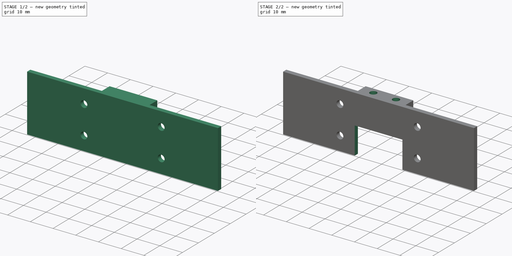
[diagram: build sequence overview — one tinted view per stage of 2, left to right]
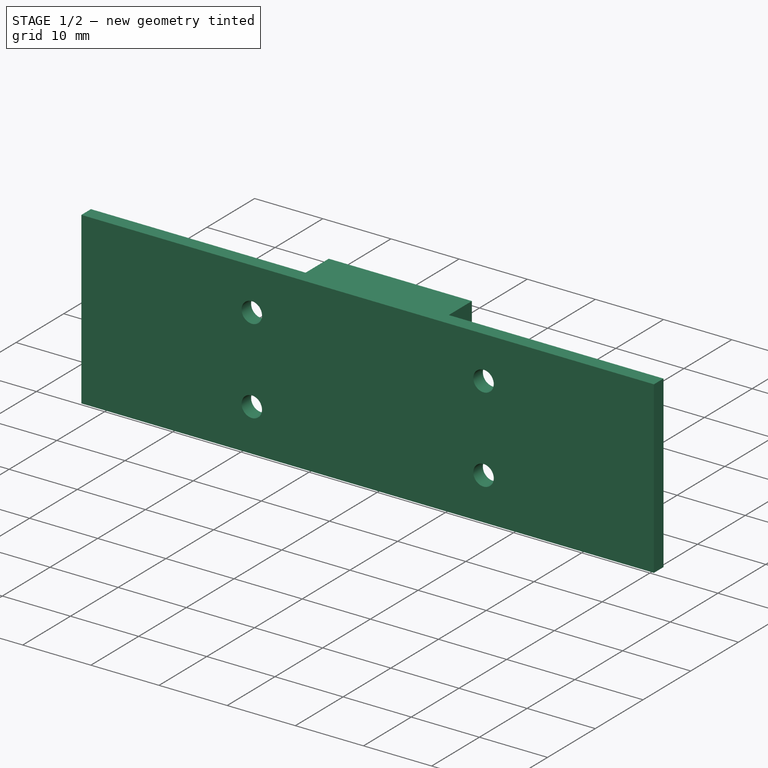
[diagram: stage 1 of 2 — iso view after this stage's code; geometry added in this stage tinted green]
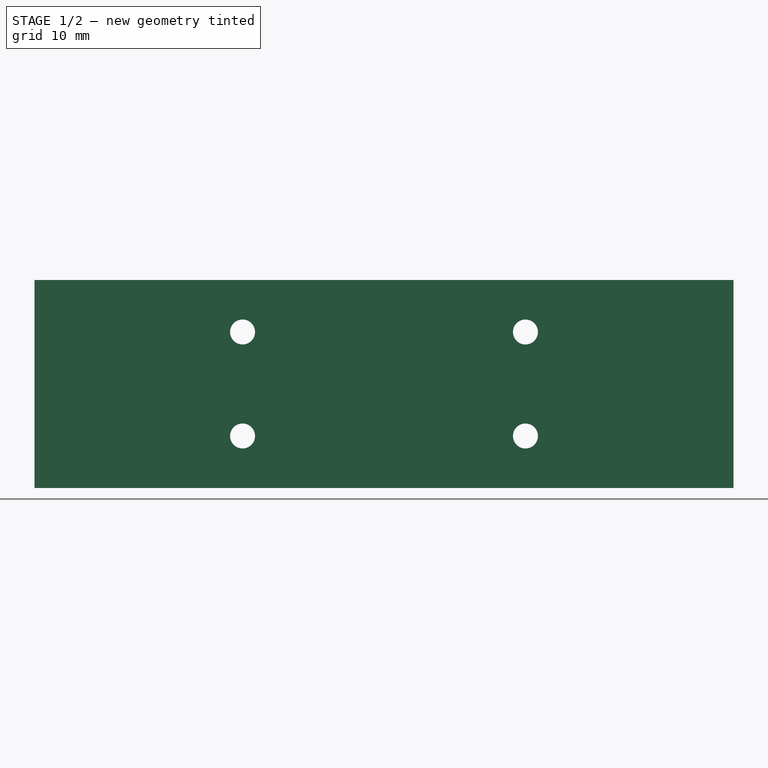
[diagram: stage 1 of 2 — front view after this stage's code; geometry added in this stage tinted green]
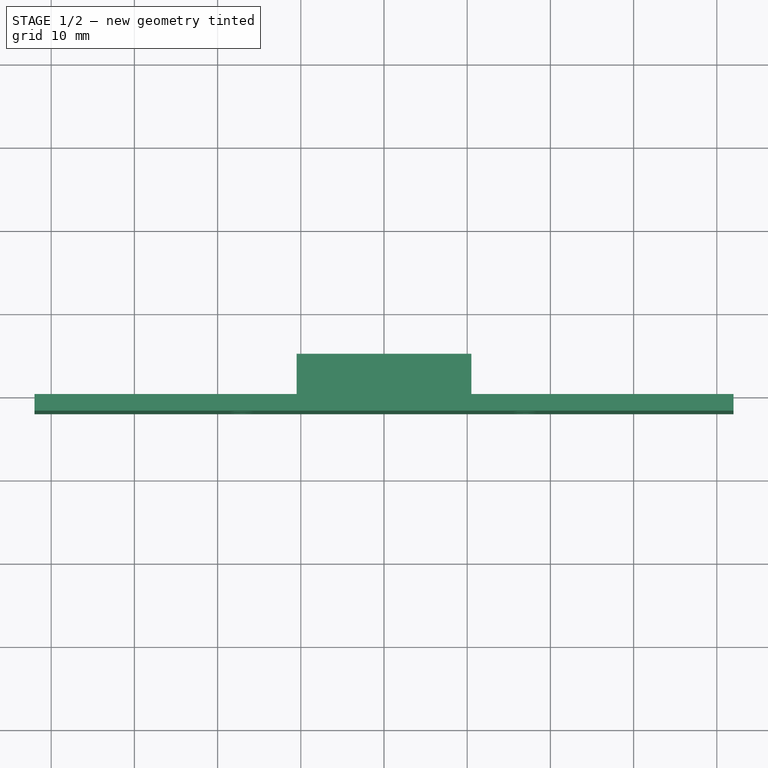
[diagram: stage 1 of 2 — top view after this stage's code; geometry added in this stage tinted green]
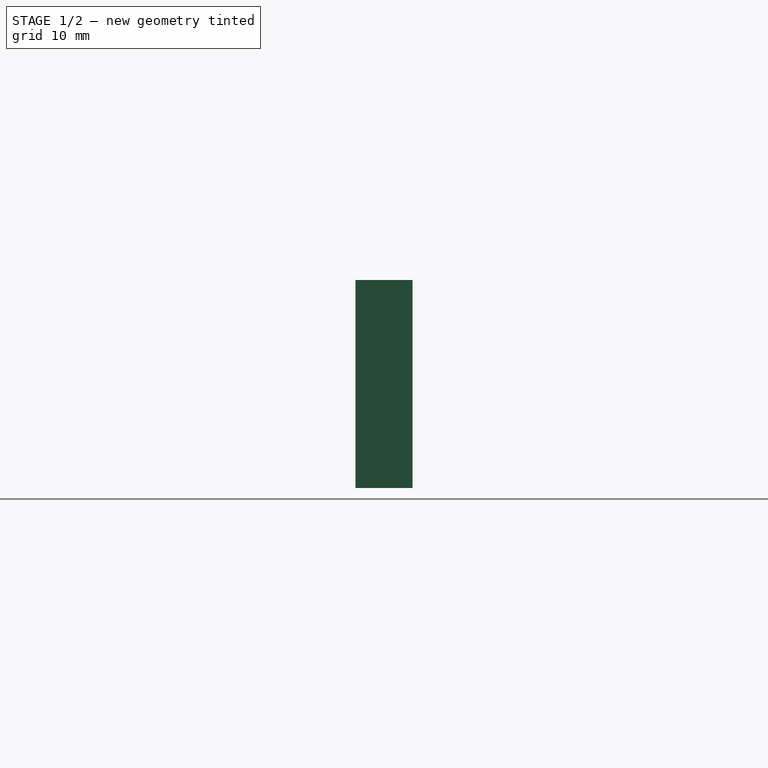
[diagram: stage 1 of 2 — right view after this stage's code; geometry added in this stage tinted green]
FCSTD DOCUMENT  (FreeCAD 0.21R33668 +26 (Git))
Label: 6F_hipback
License: All rights reserved
LicenseURL: http://en.wikipedia.org/wiki/All_rights_reserved
objects: Sketcher::SketchObject×4, PartDesign::Pad×2, PartDesign::Pocket×2, Spreadsheet::Sheet×1, PartDesign::Body×1
note: 13 computed .brp shape members not serialized (recipe doc carries the construction recipe); baked Part::Feature solids carry a one-line shape summary decoded from their .brp

FEATURE [Sketcher::SketchObject] Sketch  label="baseSketch"
  FullyConstrained = true
  MapMode = 5
  Placement = pos=(0,0,0) rot=(1,0,0;1.5708rad)
  Support = -> [XZ_Plane]
  expr: Constraints[6] = Spreadsheet.hip_width
  expr: Constraints[8] = Spreadsheet.hip_height_frontback
  sketch-geometry (4):
    g0: LineSegment StartX=-42 StartY=12.5 StartZ=0 EndX=42 EndY=12.5 EndZ=0
    g1: LineSegment StartX=42 StartY=12.5 StartZ=0 EndX=42 EndY=-12.5 EndZ=0
    g2: LineSegment StartX=42 StartY=-12.5 StartZ=0 EndX=-42 EndY=-12.5 EndZ=0
    g3: LineSegment StartX=-42 StartY=-12.5 StartZ=0 EndX=-42 EndY=12.5 EndZ=0
  constraints (10):
    c: Coincident(g0,g1)
    c: Coincident(g1,g2)
    c: Coincident(g2,g3)
    c: Coincident(g3,g0)
    c: Horizontal(g2)
    c: Vertical(g1)
    c: DistanceX(g0,g0) = 84
    c: Symmetric(g0,g0,g-2)
    c: DistanceY(g3,g3) = 25
    c: Symmetric(g0,g2,g-1)
FEATURE [Spreadsheet::Sheet] Spreadsheet
  cells = A2='hip_width; B2(hip_width)=84; A3='hip_height_frontback; B3(hip_height_frontback)=25; A4='hole_from_mid; B4(hole_from_mid)=17; A5='hole_dia; B5(hole_dia)=3; A6='hole_dist_from_middle; B6(hole_dist_from_middle)=6.25; A7='servo_hold_depth; B7(servo_hold_depth)=6.85; A8='servo_hold_width; B8(servo_hold_width)=21; A9='servo_hole_from_hip_plate; B9(servo_hole_from_hip_plate)==B7 - 3 - B11; A10='servo_holes_distance; B10(servo_holes_distance)=10; A11='thickness; B11(thickness)=2
FEATURE [PartDesign::Pad] Pad  label="basePad"
  Direction = (0,-1,-2e-16)
  Length = 2
  Length2 = 10
  Placement = pos=(0,0,0) rot=(1,0,0;1.5708rad)
  Profile = -> Sketch
  ReferenceAxis = -> Sketch [N_Axis]
  Type = 0
  expr: Length = Spreadsheet.thickness
FEATURE [Sketcher::SketchObject] Sketch001  label="midServoFrontSketch"
  ExternalGeometry = -> [Pad]
  FullyConstrained = true
  MapMode = 5
  Placement = pos=(0,0,0) rot=(-1,0,0;1.5708rad)
  Support = -> [Pad]
  expr: Constraints[7] = Spreadsheet.servo_hold_width
  sketch-geometry (4):
    g0: LineSegment StartX=-10.5 StartY=12.5 StartZ=0 EndX=10.5 EndY=12.5 EndZ=0
    g1: LineSegment StartX=10.5 StartY=12.5 StartZ=0 EndX=10.5 EndY=-12.5 EndZ=0
    g2: LineSegment StartX=10.5 StartY=-12.5 StartZ=0 EndX=-10.5 EndY=-12.5 EndZ=0
    g3: LineSegment StartX=-10.5 StartY=-12.5 StartZ=0 EndX=-10.5 EndY=12.5 EndZ=0
  constraints (11):
    c: Coincident(g0,g1)
    c: Coincident(g1,g2)
    c: Coincident(g2,g3)
    c: Coincident(g3,g0)
    c: Horizontal(g2)
    c: Vertical(g1)
    c: Vertical(g3)
    c: DistanceX(g0,g0) = 21
    c: Symmetric(g0,g0,g-2)
    c: Horizontal(g0,g-3)
    c: Horizontal(g2,g-4)
FEATURE [PartDesign::Pad] Pad001  label="midServoFrontPad"
  BaseFeature = -> Pad
  Direction = (0,1,2e-16)
  Length = 4.85
  Length2 = 10
  Placement = pos=(0,0,0) rot=(1,0,0;1.5708rad)
  Profile = -> Sketch001
  ReferenceAxis = -> Sketch001 [N_Axis]
  Type = 0
  expr: Length = Spreadsheet.servo_hold_depth - Spreadsheet.thickness
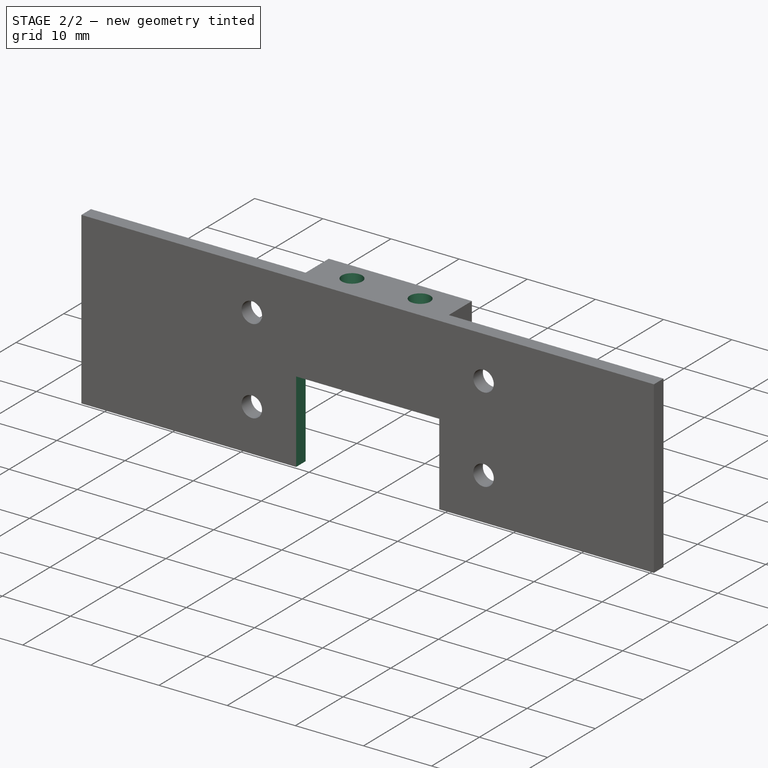
[diagram: stage 2 of 2 — iso view after this stage's code; geometry added in this stage tinted green]
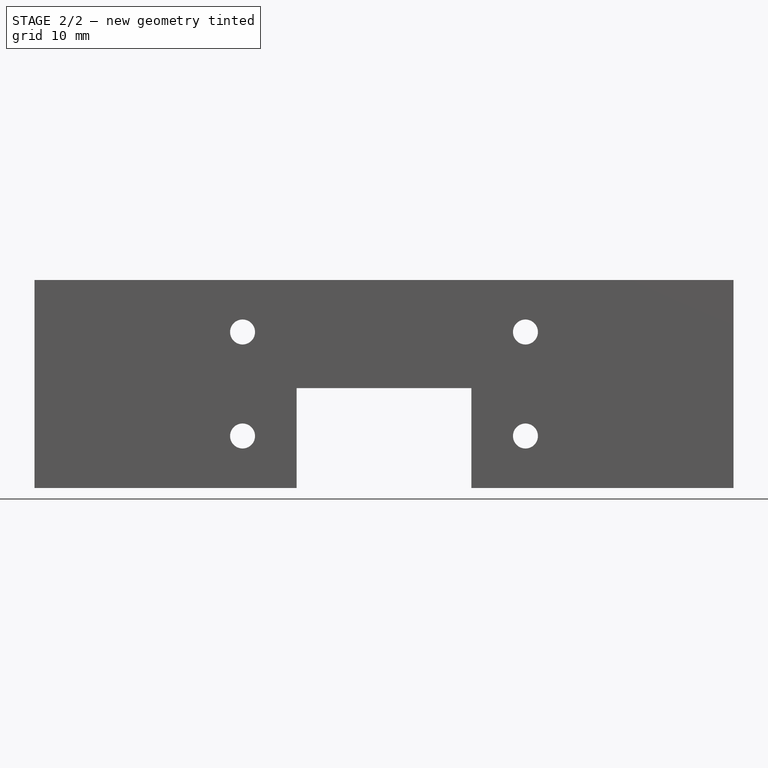
[diagram: stage 2 of 2 — front view after this stage's code; geometry added in this stage tinted green]
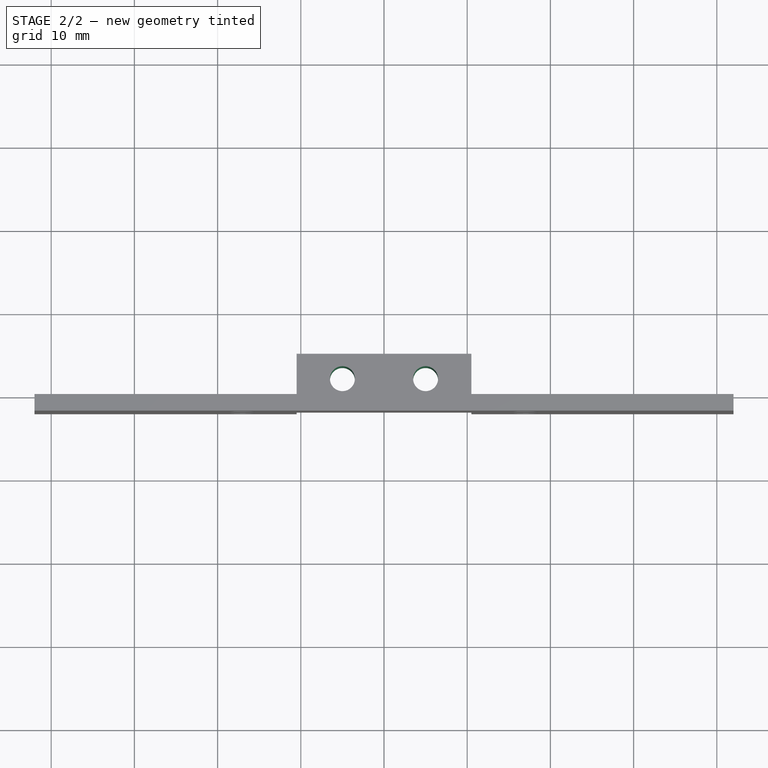
[diagram: stage 2 of 2 — top view after this stage's code; geometry added in this stage tinted green]
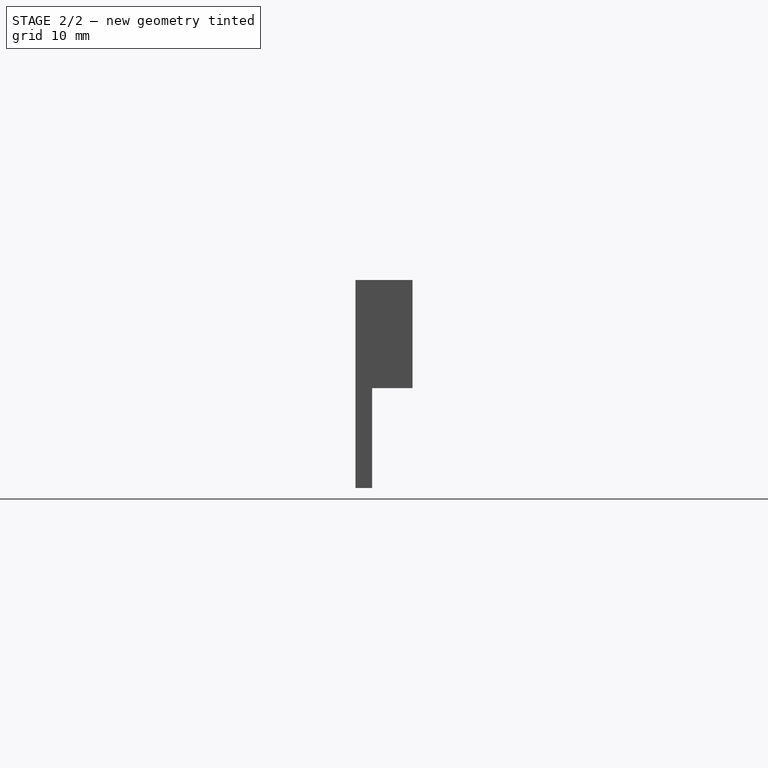
[diagram: stage 2 of 2 — right view after this stage's code; geometry added in this stage tinted green]
FEATURE [Sketcher::SketchObject] Sketch002  label="midServoFrontHolesSketch"
  FullyConstrained = true
  MapMode = 5
  Placement = pos=(0,0,12.5) rot=(0,0,1;3.14159rad)
  Support = -> [Pad001]
  expr: Constraints[1] = Spreadsheet.servo_hole_from_hip_plate
  expr: Constraints[3] = Spreadsheet.hole_dia
  expr: Constraints[4] = Spreadsheet.servo_holes_distance
  sketch-geometry (2):
    g0: Circle CenterX=-5 CenterY=-1.85 CenterZ=0 NormalX=0 NormalY=0 NormalZ=1 AngleXU=0 Radius=1.5
    g1: Circle CenterX=5 CenterY=-1.85 CenterZ=0 NormalX=0 NormalY=0 NormalZ=1 AngleXU=0 Radius=1.5
  constraints (5):
    c: Symmetric(g1,g0,g-2)
    c: DistanceY(g1,g-1) = 1.85
    c: Equal(g1,g0)
    c: Diameter(g1) = 3
    c: DistanceX(g0,g1) = 10
FEATURE [PartDesign::Pocket] Pocket  label="midServoFronHolesPocket"
  BaseFeature = -> Pad001
  Direction = (0,2e-16,-1)
  Length = 0
  Length2 = 5
  Placement = pos=(0,0,0) rot=(1,0,0;1.5708rad)
  Profile = -> Sketch002
  ReferenceAxis = -> Sketch002 [N_Axis]
  Type = 1
FEATURE [Sketcher::SketchObject] Sketch003
  ExternalGeometry = -> [Pocket]
  FullyConstrained = true
  MapMode = 5
  Placement = pos=(0,4.85,1.1e-15) rot=(-1,0,0;1.5708rad)
  Support = -> [Pocket]
  sketch-geometry (4):
    g0: LineSegment StartX=-10.5 StartY=12.5 StartZ=0 EndX=10.5 EndY=12.5 EndZ=0
    g1: LineSegment StartX=10.5 StartY=12.5 StartZ=0 EndX=10.5 EndY=0.5 EndZ=0
    g2: LineSegment StartX=10.5 StartY=0.5 StartZ=0 EndX=-10.5 EndY=0.5 EndZ=0
    g3: LineSegment StartX=-10.5 StartY=0.5 StartZ=0 EndX=-10.5 EndY=12.5 EndZ=0
  constraints (10):
    c: Coincident(g0,g1)
    c: Coincident(g1,g2)
    c: Coincident(g2,g3)
    c: Coincident(g3,g0)
    c: Horizontal(g2)
    c: Vertical(g1)
    c: Vertical(g3)
    c: Coincident(g0,g-3)
    c: Coincident(g0,g-4)
    c: DistanceY(g1,g0) = 12
FEATURE [PartDesign::Pocket] Pocket001
  BaseFeature = -> Pocket
  Direction = (0,-1,-2e-16)
  Length = 10
  Length2 = 5
  Placement = pos=(0,0,0) rot=(1,0,0;1.5708rad)
  Profile = -> Sketch003
  ReferenceAxis = -> Sketch003 [N_Axis]
  Type = 0
FEATURE [PartDesign::Body] Body
  Group = -> [Sketch,Pad,Sketch001,Pad001,Sketch002,Pocket,Sketch003,Pocket001]
  Origin = -> Origin
  Tip = -> Pocket001
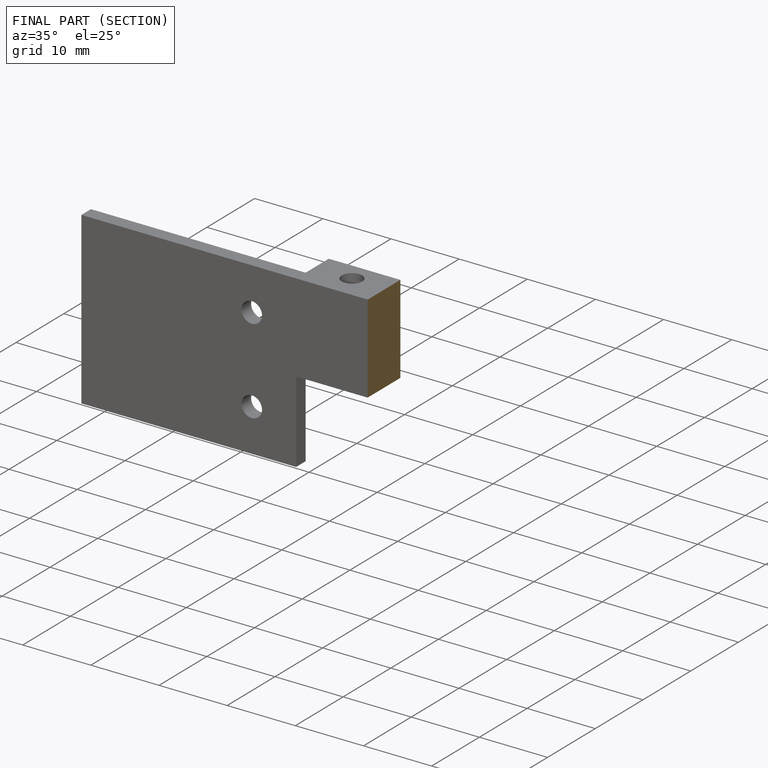
[diagram: finished part — half-section view (interior)]
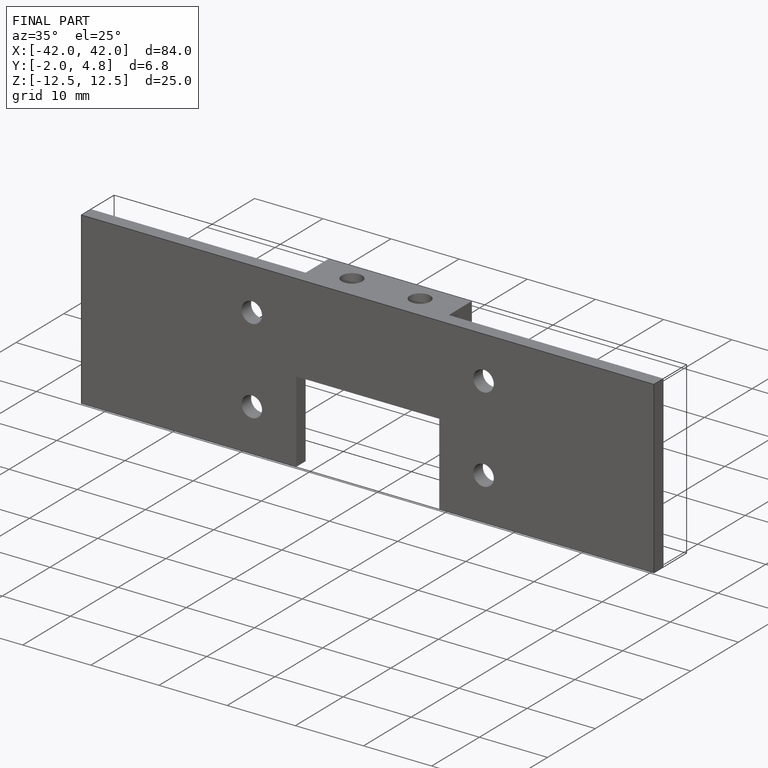
[diagram: finished part — iso view with bounding-box wireframe]
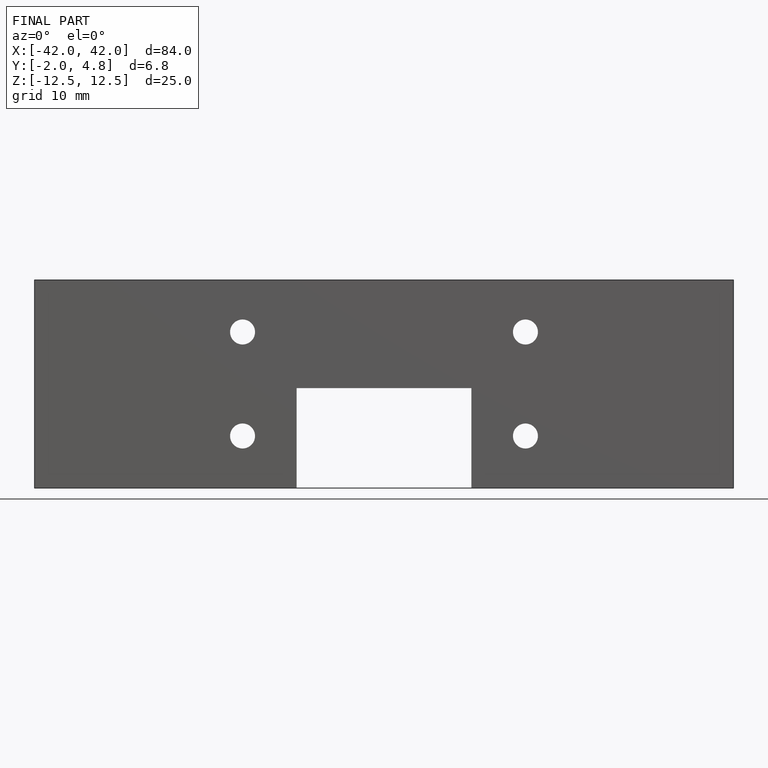
[diagram: finished part — front view with bounding-box wireframe]
